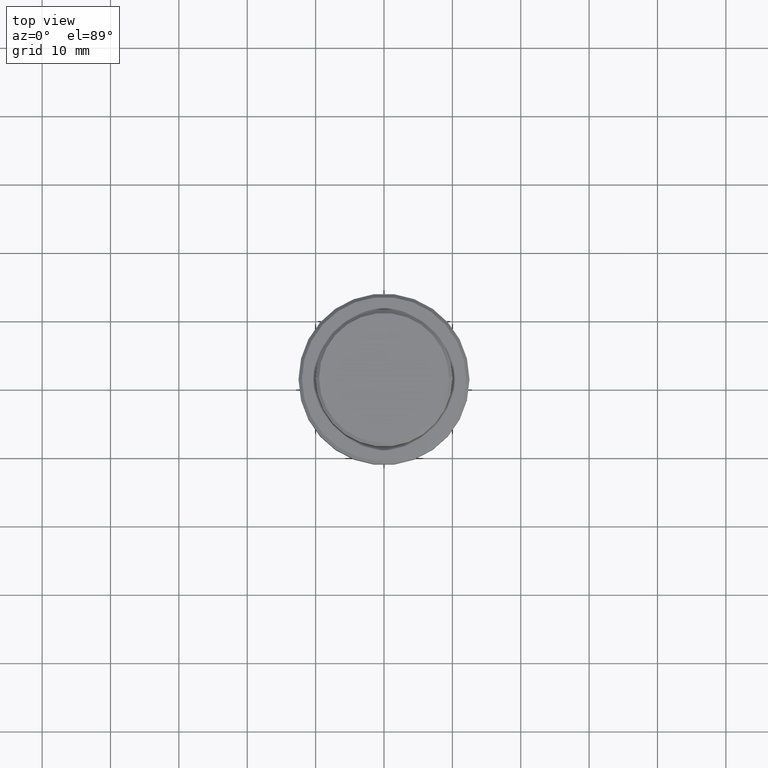
[diagram: clean part render]
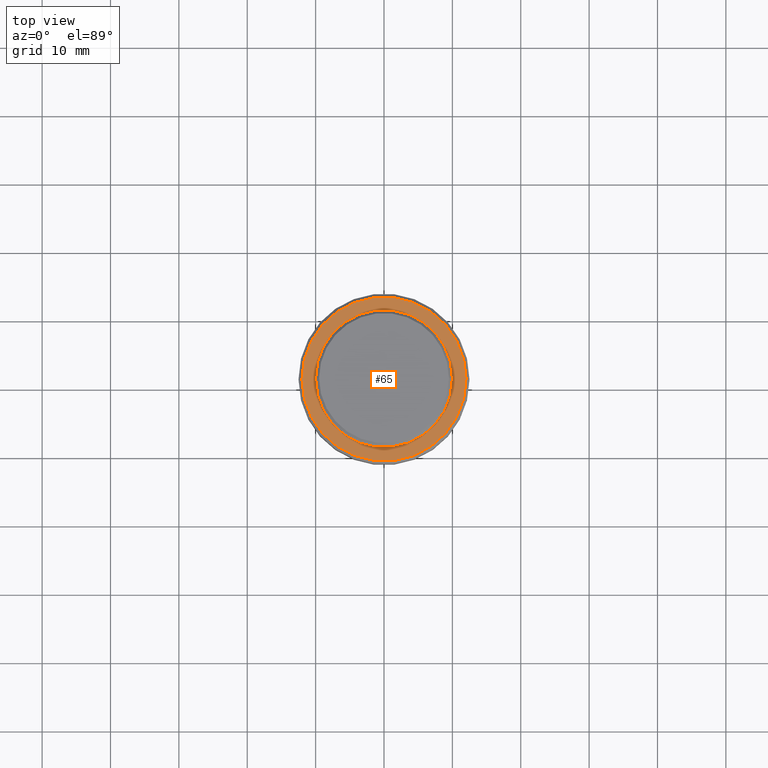
[diagram: same view with one face highlighted and labeled with its STEP entity id]
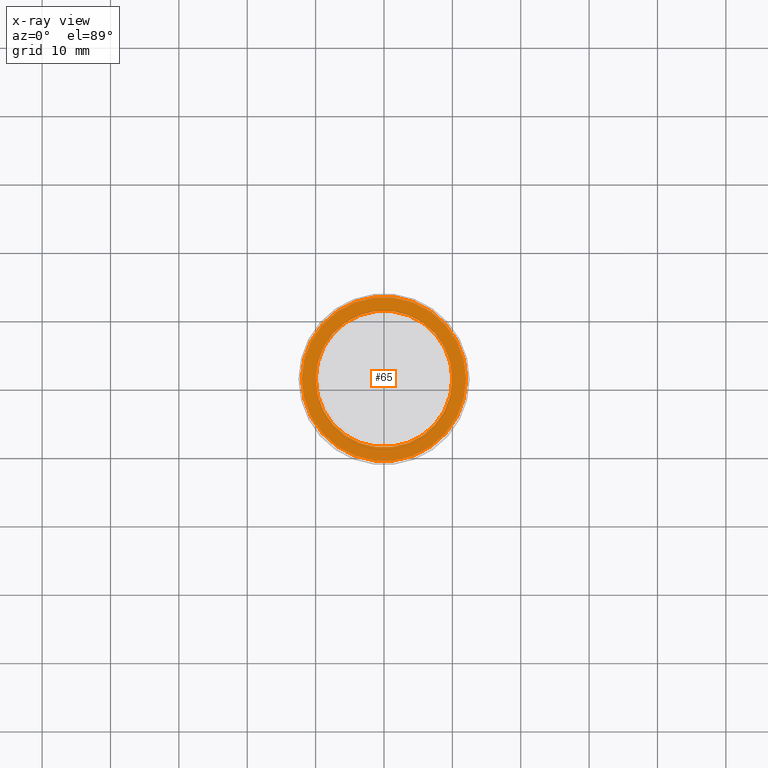
[diagram: x-ray of the same camera — body ghosted, the highlighted face saturated]
A machine part, top view. The second image highlights one B-rep face of the part: STEP entity #65.
The next image is the same camera in x-ray: the body ghosted, the highlighted face saturated — about 0% of this face is hidden behind the body in this view.
In plain terms, the highlighted planar face has unit normal (0, -0, 1).
Its self-contained STEP definition (entity closure, byte-faithful):
#26 = DIRECTION ( 'NONE',  ( 1.000000000000000000, 0.000000000000000000, 0.000000000000000000 ) ) ;
#46 = AXIS2_PLACEMENT_3D ( 'NONE', #1324, #387, #26 ) ;
#65 = ADVANCED_FACE ( 'NONE', ( #430, #124 ), #537, .T. ) ;
#116 = EDGE_LOOP ( 'NONE', ( #289, #1279 ) ) ;
#117 = DIRECTION ( 'NONE',  ( -0.000000000000000000, -0.000000000000000000, 1.000000000000000000 ) ) ;
#124 = FACE_BOUND ( 'NONE', #549, .T. ) ;
#155 = CARTESIAN_POINT ( 'NONE',  ( -9.999999999999992895, 1.224646799147352468E-15, -9.000000000000000000 ) ) ;
#232 = EDGE_CURVE ( 'NONE', #348, #1276, #314, .T. ) ;
#255 = VERTEX_POINT ( 'NONE', #787 ) ;
#287 = AXIS2_PLACEMENT_3D ( 'NONE', #1024, #1132, #665 ) ;
#289 = ORIENTED_EDGE ( 'NONE', *, *, #232, .T. ) ;
#293 = CIRCLE ( 'NONE', #433, 11.99999999999999645 ) ;
#314 = CIRCLE ( 'NONE', #287, 11.99999999999999645 ) ;
#336 = EDGE_CURVE ( 'NONE', #714, #255, #649, .T. ) ;
#348 = VERTEX_POINT ( 'NONE', #528 ) ;
#387 = DIRECTION ( 'NONE',  ( 0.000000000000000000, 0.000000000000000000, -1.000000000000000000 ) ) ;
#426 = DIRECTION ( 'NONE',  ( 1.000000000000000000, 0.000000000000000000, 0.000000000000000000 ) ) ;
#430 = FACE_OUTER_BOUND ( 'NONE', #116, .T. ) ;
#433 = AXIS2_PLACEMENT_3D ( 'NONE', #995, #117, #426 ) ;
#516 = AXIS2_PLACEMENT_3D ( 'NONE', #1291, #982, #1174 ) ;
#528 = CARTESIAN_POINT ( 'NONE',  ( -11.99999999999999645, 0.000000000000000000, -9.000000000000000000 ) ) ;
#537 = PLANE ( 'NONE',  #516 ) ;
#549 = EDGE_LOOP ( 'NONE', ( #1162, #1200 ) ) ;
#649 = CIRCLE ( 'NONE', #1155, 9.999999999999992895 ) ;
#656 = CIRCLE ( 'NONE', #46, 9.999999999999992895 ) ;
#665 = DIRECTION ( 'NONE',  ( 1.000000000000000000, 0.000000000000000000, 0.000000000000000000 ) ) ;
#714 = VERTEX_POINT ( 'NONE', #155 ) ;
#787 = CARTESIAN_POINT ( 'NONE',  ( 9.999999999999992895, 0.000000000000000000, -9.000000000000000000 ) ) ;
#967 = DIRECTION ( 'NONE',  ( 0.000000000000000000, 0.000000000000000000, -1.000000000000000000 ) ) ;
#982 = DIRECTION ( 'NONE',  ( 0.000000000000000000, -0.000000000000000000, 1.000000000000000000 ) ) ;
#995 = CARTESIAN_POINT ( 'NONE',  ( 0.000000000000000000, 0.000000000000000000, -9.000000000000000000 ) ) ;
#1024 = CARTESIAN_POINT ( 'NONE',  ( 0.000000000000000000, 0.000000000000000000, -9.000000000000000000 ) ) ;
#1040 = CARTESIAN_POINT ( 'NONE',  ( 11.99999999999999645, 1.500192328955507537E-15, -9.000000000000000000 ) ) ;
#1062 = CARTESIAN_POINT ( 'NONE',  ( 0.000000000000000000, 0.000000000000000000, -9.000000000000000000 ) ) ;
#1132 = DIRECTION ( 'NONE',  ( -0.000000000000000000, -0.000000000000000000, 1.000000000000000000 ) ) ;
#1155 = AXIS2_PLACEMENT_3D ( 'NONE', #1062, #967, #1182 ) ;
#1162 = ORIENTED_EDGE ( 'NONE', *, *, #1374, .T. ) ;
#1174 = DIRECTION ( 'NONE',  ( 1.000000000000000000, 0.000000000000000000, 0.000000000000000000 ) ) ;
#1182 = DIRECTION ( 'NONE',  ( 1.000000000000000000, 0.000000000000000000, 0.000000000000000000 ) ) ;
#1200 = ORIENTED_EDGE ( 'NONE', *, *, #336, .T. ) ;
#1276 = VERTEX_POINT ( 'NONE', #1040 ) ;
#1279 = ORIENTED_EDGE ( 'NONE', *, *, #1353, .T. ) ;
#1291 = CARTESIAN_POINT ( 'NONE',  ( 0.000000000000000000, 9.499999999999992895, -9.000000000000000000 ) ) ;
#1324 = CARTESIAN_POINT ( 'NONE',  ( 0.000000000000000000, 0.000000000000000000, -9.000000000000000000 ) ) ;
#1353 = EDGE_CURVE ( 'NONE', #1276, #348, #293, .T. ) ;
#1374 = EDGE_CURVE ( 'NONE', #255, #714, #656, .T. ) ;